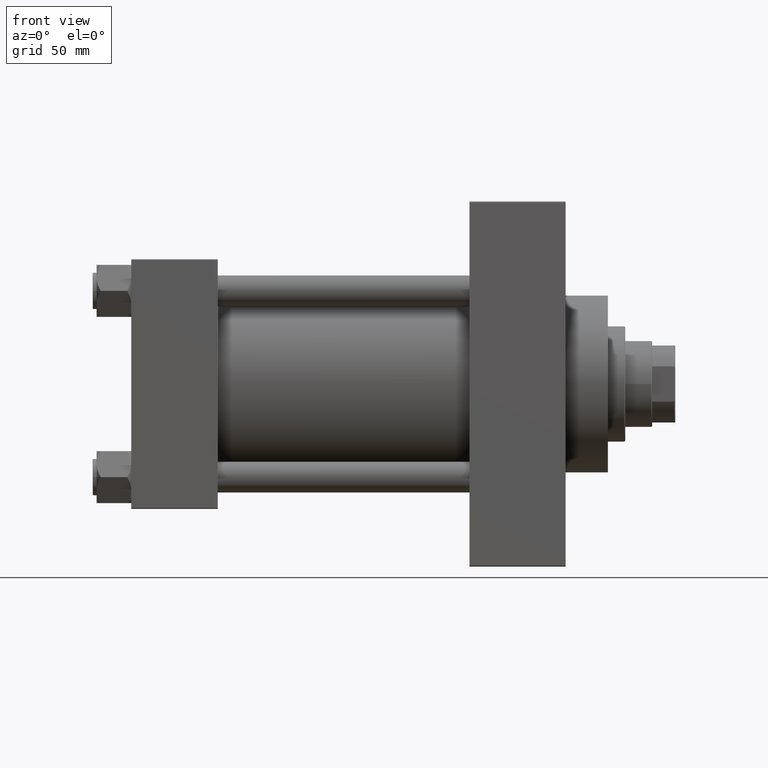
[diagram: clean part render]
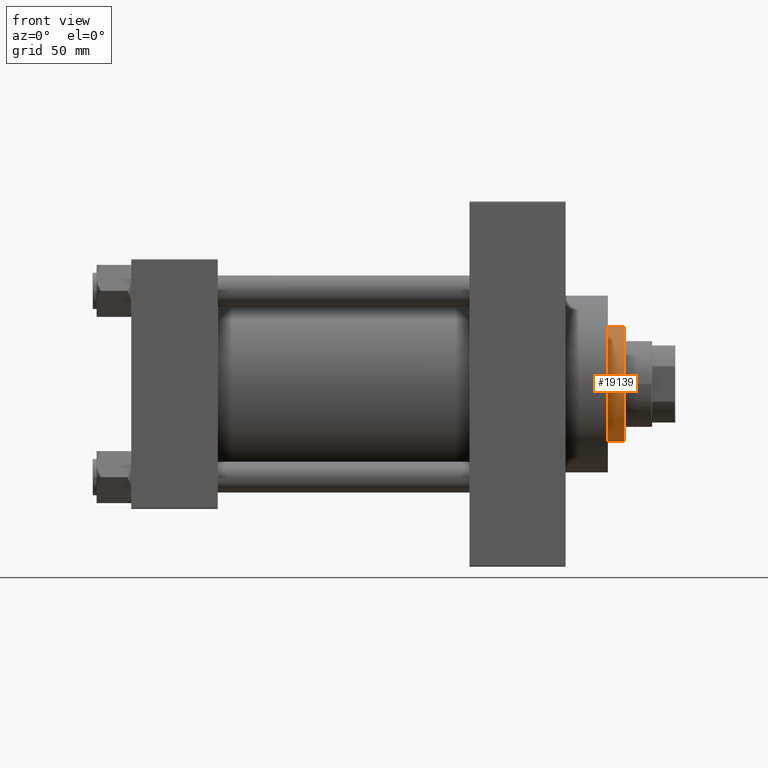
[diagram: same view with one face highlighted and labeled with its STEP entity id]
A machine part, front view. The second image highlights one B-rep face of the part: STEP entity #19139.
In plain terms, the highlighted cylindrical surface (partial cylindrical patch) has radius 30 mm, axis along (-1, 0, 0).
Its self-contained STEP definition (entity closure, byte-faithful):
#796 = CYLINDRICAL_SURFACE ( 'NONE', #1334, 30.00000000000000000 ) ;
#1334 = AXIS2_PLACEMENT_3D ( 'NONE', #7597, #45097, #33497 ) ;
#2441 = CIRCLE ( 'NONE', #27174, 30.00000000000000000 ) ;
#5441 = DIRECTION ( 'NONE',  ( 1.000000000000000000, 0.000000000000000000, 0.000000000000000000 ) ) ;
#7482 = VECTOR ( 'NONE', #17904, 1000.000000000000000 ) ;
#7597 = CARTESIAN_POINT ( 'NONE',  ( 0.000000000000000000, 0.000000000000000000, 52.25999999999999801 ) ) ;
#8556 = ORIENTED_EDGE ( 'NONE', *, *, #16260, .T. ) ;
#9125 = VECTOR ( 'NONE', #36425, 1000.000000000000000 ) ;
#10646 = LINE ( 'NONE', #10883, #7482 ) ;
#10883 = CARTESIAN_POINT ( 'NONE',  ( 30.00000000000000000, 3.673940397442059178E-15, 52.25999999999999801 ) ) ;
#15008 = CARTESIAN_POINT ( 'NONE',  ( 30.00000000000000000, 3.673940397442059178E-15, 51.75999999999999091 ) ) ;
#16260 = EDGE_CURVE ( 'NONE', #47783, #29431, #10646, .T. ) ;
#17306 = CARTESIAN_POINT ( 'NONE',  ( 0.000000000000000000, 0.000000000000000000, 51.75999999999999091 ) ) ;
#17904 = DIRECTION ( 'NONE',  ( -0.000000000000000000, -0.000000000000000000, -1.000000000000000000 ) ) ;
#19139 = ADVANCED_FACE ( 'NONE', ( #22828 ), #796, .T. ) ;
#19606 = EDGE_LOOP ( 'NONE', ( #35912, #8556, #45101, #32837 ) ) ;
#19797 = EDGE_CURVE ( 'NONE', #27649, #33274, #36664, .T. ) ;
#22424 = AXIS2_PLACEMENT_3D ( 'NONE', #30830, #45603, #27211 ) ;
#22828 = FACE_OUTER_BOUND ( 'NONE', #19606, .T. ) ;
#25554 = EDGE_CURVE ( 'NONE', #29431, #33274, #42518, .T. ) ;
#27174 = AXIS2_PLACEMENT_3D ( 'NONE', #17306, #39340, #5441 ) ;
#27211 = DIRECTION ( 'NONE',  ( 1.000000000000000000, 0.000000000000000000, 0.000000000000000000 ) ) ;
#27649 = VERTEX_POINT ( 'NONE', #31113 ) ;
#29431 = VERTEX_POINT ( 'NONE', #47349 ) ;
#30830 = CARTESIAN_POINT ( 'NONE',  ( 0.000000000000000000, 0.000000000000000000, 43.25999999999999801 ) ) ;
#31113 = CARTESIAN_POINT ( 'NONE',  ( -30.00000000000000000, 0.000000000000000000, 51.75999999999999091 ) ) ;
#32837 = ORIENTED_EDGE ( 'NONE', *, *, #19797, .F. ) ;
#33274 = VERTEX_POINT ( 'NONE', #43526 ) ;
#33497 = DIRECTION ( 'NONE',  ( -1.000000000000000000, 0.000000000000000000, 0.000000000000000000 ) ) ;
#35912 = ORIENTED_EDGE ( 'NONE', *, *, #39191, .T. ) ;
#36425 = DIRECTION ( 'NONE',  ( -0.000000000000000000, -0.000000000000000000, -1.000000000000000000 ) ) ;
#36664 = LINE ( 'NONE', #47550, #9125 ) ;
#39191 = EDGE_CURVE ( 'NONE', #27649, #47783, #2441, .T. ) ;
#39340 = DIRECTION ( 'NONE',  ( 0.000000000000000000, 0.000000000000000000, -1.000000000000000000 ) ) ;
#42518 = CIRCLE ( 'NONE', #22424, 30.00000000000000000 ) ;
#43526 = CARTESIAN_POINT ( 'NONE',  ( -30.00000000000000000, 0.000000000000000000, 43.25999999999999801 ) ) ;
#45097 = DIRECTION ( 'NONE',  ( -0.000000000000000000, -0.000000000000000000, -1.000000000000000000 ) ) ;
#45101 = ORIENTED_EDGE ( 'NONE', *, *, #25554, .T. ) ;
#45603 = DIRECTION ( 'NONE',  ( 0.000000000000000000, 0.000000000000000000, 1.000000000000000000 ) ) ;
#47349 = CARTESIAN_POINT ( 'NONE',  ( 30.00000000000000000, 3.673940397442059178E-15, 43.25999999999999801 ) ) ;
#47550 = CARTESIAN_POINT ( 'NONE',  ( -30.00000000000000000, 0.000000000000000000, 52.25999999999999801 ) ) ;
#47783 = VERTEX_POINT ( 'NONE', #15008 ) ;